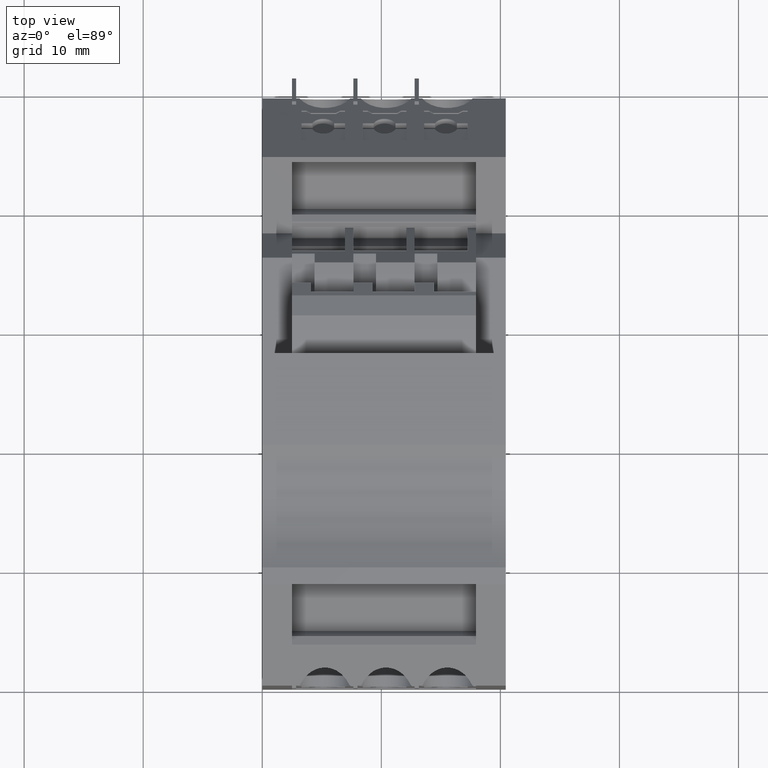
[diagram: clean part render]
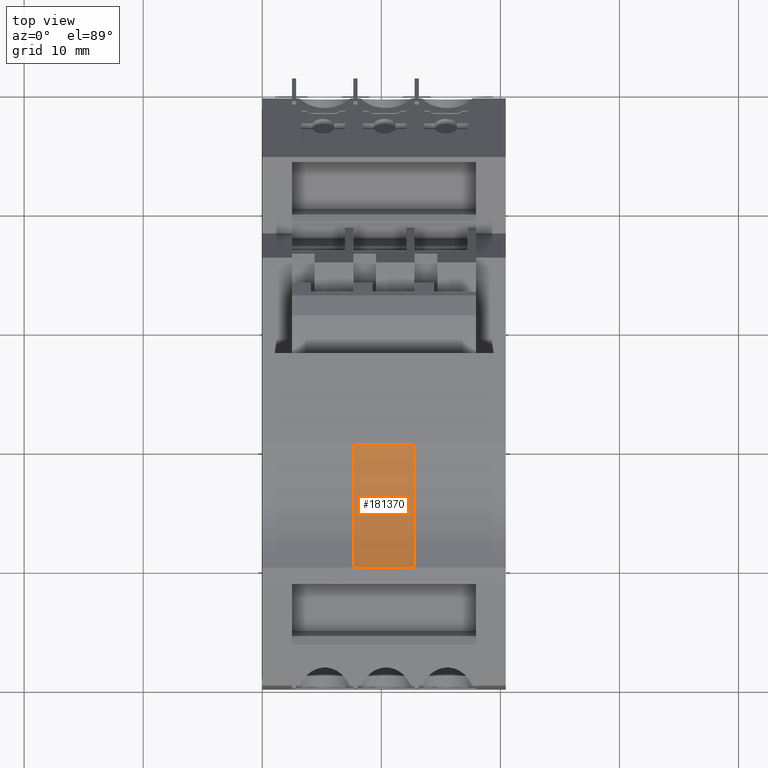
[diagram: same view with one face highlighted and labeled with its STEP entity id]
A machine part, top view. The second image highlights one B-rep face of the part: STEP entity #181370.
In plain terms, the highlighted cylindrical surface (partial cylindrical patch) has radius 10 mm, axis along (1, 0, -0).
Its self-contained STEP definition (entity closure, byte-faithful):
#50940=CARTESIAN_POINT('',(430.260883799414,697.534347634237,
82.9450001673223));
#50950=DIRECTION('',(3.65710502038586E-10,4.95141851786755E-10,1.));
#50960=VECTOR('',#50950,1.);
#50970=LINE('',#50940,#50960);
#50980=CARTESIAN_POINT('',(430.260883795876,697.534347629446,
73.2699999847475));
#50990=VERTEX_POINT('',#50980);
#51000=CARTESIAN_POINT('',(430.260883797759,697.534347634006,
78.4199999840403));
#51010=VERTEX_POINT('',#51000);
#51020=EDGE_CURVE('',#50990,#51010,#50970,.T.);
#81190=CARTESIAN_POINT('',(435.425728183013,706.097313387596,
82.9450001611936));
#81200=DIRECTION('',(3.65710502038586E-10,4.95141851786755E-10,1.));
#81210=DIRECTION('',(-0.386155668810907,-0.922433628747999,
5.97956747321646E-10));
#81220=AXIS2_PLACEMENT_3D('',#81190,#81200,#81210);
#81230=CYLINDRICAL_SURFACE('',#81220,10.);
#81270=CARTESIAN_POINT('',(440.590572543565,697.534347620336,
82.9450001635446));
#81280=DIRECTION('',(3.65710502038586E-10,4.95141851786755E-10,1.));
#81290=VECTOR('',#81280,1.);
#81300=LINE('',#81270,#81290);
#81310=CARTESIAN_POINT('',(440.590572540027,697.534347615545,
73.2699999809697));
#81320=VERTEX_POINT('',#81310);
#81350=CARTESIAN_POINT('',(435.425728179475,706.097313382805,
73.2699999786187));
#81360=DIRECTION('',(3.65710502038586E-10,4.95141851786755E-10,1.));
#81370=DIRECTION('',(-0.386155668810907,-0.922433628747999,
5.97956728772318E-10));
#81380=AXIS2_PLACEMENT_3D('',#81350,#81360,#81370);
#81390=CIRCLE('',#81380,10.);
#81400=EDGE_CURVE('',#50990,#81320,#81390,.T.);
#164420=CARTESIAN_POINT('',(435.425728181358,706.097313385355,
78.4199999786187));
#164430=DIRECTION('',(3.65710502038586E-10,4.95141851786755E-10,1.));
#164440=DIRECTION('',(-0.386155668810907,-0.922433628747999,
5.97956728772318E-10));
#164450=AXIS2_PLACEMENT_3D('',#164420,#164430,#164440);
#164460=CIRCLE('',#164450,10.);
#164470=CARTESIAN_POINT('',(440.59057254191,697.534347621499,
78.4199999832219));
#164480=VERTEX_POINT('',#164470);
#164490=EDGE_CURVE('',#51010,#164480,#164460,.T.);
#181300=ORIENTED_EDGE('',*,*,#51020,.T.);
#181310=ORIENTED_EDGE('',*,*,#81400,.F.);
#181320=EDGE_CURVE('',#81320,#164480,#81300,.T.);
#181330=ORIENTED_EDGE('',*,*,#181320,.F.);
#181340=ORIENTED_EDGE('',*,*,#164490,.T.);
#181350=EDGE_LOOP('',(#181340,#181330,#181310,#181300));
#181360=FACE_OUTER_BOUND('',#181350,.T.);
#181370=ADVANCED_FACE('',(#181360),#81230,.F.);